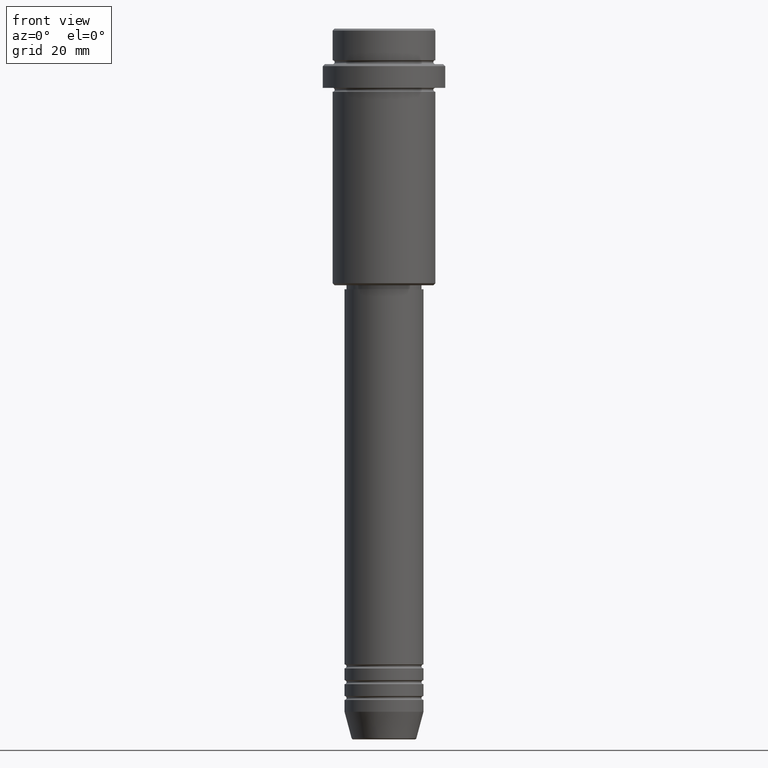
[diagram: clean part render]
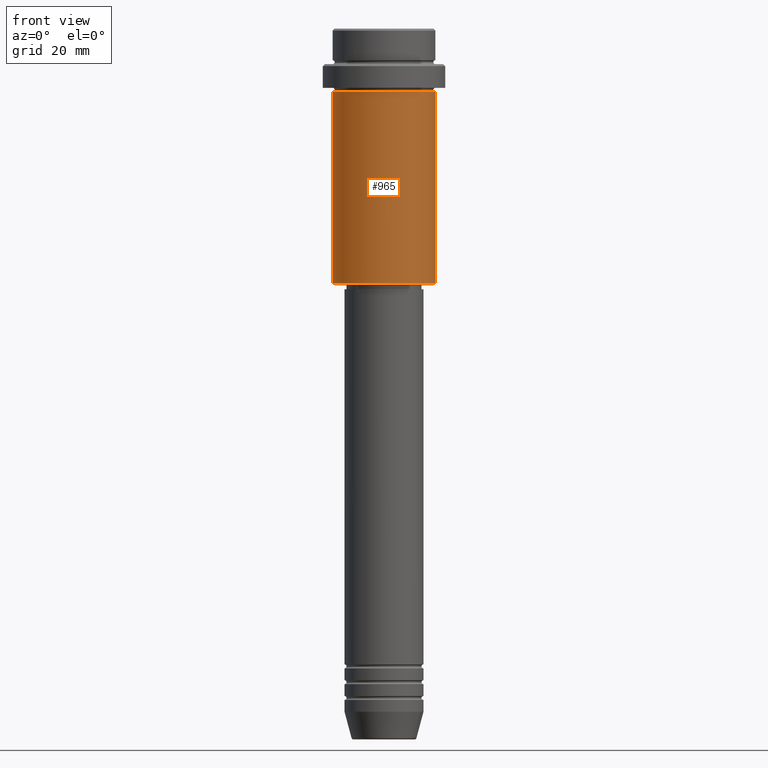
[diagram: same view with one face highlighted and labeled with its STEP entity id]
A machine part, front view. The second image highlights one B-rep face of the part: STEP entity #965.
In plain terms, the highlighted cylindrical surface (partial cylindrical patch) has radius 13 mm, axis along (-0, -0, 1).
Its self-contained STEP definition (entity closure, byte-faithful):
#12 = VERTEX_POINT ( 'NONE', #423 ) ;
#95 = CARTESIAN_POINT ( 'NONE',  ( -13.00000000000000000, 1.592040838891559095E-15, -64.50000000000001421 ) ) ;
#124 = EDGE_CURVE ( 'NONE', #172, #580, #1292, .T. ) ;
#131 = VECTOR ( 'NONE', #170, 1000.000000000000000 ) ;
#168 = FACE_OUTER_BOUND ( 'NONE', #633, .T. ) ;
#170 = DIRECTION ( 'NONE',  ( -0.000000000000000000, -0.000000000000000000, 1.000000000000000000 ) ) ;
#172 = VERTEX_POINT ( 'NONE', #767 ) ;
#190 = CARTESIAN_POINT ( 'NONE',  ( -13.00000000000000000, 1.592040838891559095E-15, 0.000000000000000000 ) ) ;
#192 = DIRECTION ( 'NONE',  ( 1.000000000000000000, 0.000000000000000000, 0.000000000000000000 ) ) ;
#193 = ORIENTED_EDGE ( 'NONE', *, *, #1192, .T. ) ;
#404 = EDGE_CURVE ( 'NONE', #12, #580, #804, .T. ) ;
#423 = CARTESIAN_POINT ( 'NONE',  ( 13.00000000000000000, 0.000000000000000000, -64.50000000000001421 ) ) ;
#465 = CARTESIAN_POINT ( 'NONE',  ( 0.000000000000000000, 0.000000000000000000, -64.50000000000001421 ) ) ;
#503 = CARTESIAN_POINT ( 'NONE',  ( 0.000000000000000000, 0.000000000000000000, 0.000000000000000000 ) ) ;
#519 = ORIENTED_EDGE ( 'NONE', *, *, #404, .T. ) ;
#533 = CIRCLE ( 'NONE', #1325, 13.00000000000000000 ) ;
#540 = LINE ( 'NONE', #190, #1046 ) ;
#555 = VERTEX_POINT ( 'NONE', #95 ) ;
#560 = EDGE_CURVE ( 'NONE', #555, #172, #540, .T. ) ;
#580 = VERTEX_POINT ( 'NONE', #1160 ) ;
#581 = DIRECTION ( 'NONE',  ( -1.000000000000000000, 0.000000000000000000, 0.000000000000000000 ) ) ;
#633 = EDGE_LOOP ( 'NONE', ( #1343, #193, #519, #642 ) ) ;
#642 = ORIENTED_EDGE ( 'NONE', *, *, #124, .F. ) ;
#659 = AXIS2_PLACEMENT_3D ( 'NONE', #737, #1162, #192 ) ;
#687 = DIRECTION ( 'NONE',  ( 1.000000000000000000, 0.000000000000000000, 0.000000000000000000 ) ) ;
#737 = CARTESIAN_POINT ( 'NONE',  ( 0.000000000000000000, 0.000000000000000000, -15.99999999999997335 ) ) ;
#767 = CARTESIAN_POINT ( 'NONE',  ( -13.00000000000000000, 1.592040838891559095E-15, -15.99999999999997335 ) ) ;
#804 = LINE ( 'NONE', #1143, #131 ) ;
#840 = AXIS2_PLACEMENT_3D ( 'NONE', #503, #1125, #687 ) ;
#917 = CYLINDRICAL_SURFACE ( 'NONE', #840, 13.00000000000000000 ) ;
#961 = DIRECTION ( 'NONE',  ( -0.000000000000000000, -0.000000000000000000, 1.000000000000000000 ) ) ;
#965 = ADVANCED_FACE ( 'NONE', ( #168 ), #917, .T. ) ;
#1046 = VECTOR ( 'NONE', #961, 1000.000000000000000 ) ;
#1125 = DIRECTION ( 'NONE',  ( -0.000000000000000000, -0.000000000000000000, 1.000000000000000000 ) ) ;
#1143 = CARTESIAN_POINT ( 'NONE',  ( 13.00000000000000000, 0.000000000000000000, 0.000000000000000000 ) ) ;
#1160 = CARTESIAN_POINT ( 'NONE',  ( 13.00000000000000000, 0.000000000000000000, -15.99999999999997335 ) ) ;
#1162 = DIRECTION ( 'NONE',  ( -0.000000000000000000, -0.000000000000000000, 1.000000000000000000 ) ) ;
#1192 = EDGE_CURVE ( 'NONE', #555, #12, #533, .T. ) ;
#1292 = CIRCLE ( 'NONE', #659, 13.00000000000000000 ) ;
#1309 = DIRECTION ( 'NONE',  ( -0.000000000000000000, -0.000000000000000000, 1.000000000000000000 ) ) ;
#1325 = AXIS2_PLACEMENT_3D ( 'NONE', #465, #1309, #581 ) ;
#1343 = ORIENTED_EDGE ( 'NONE', *, *, #560, .F. ) ;